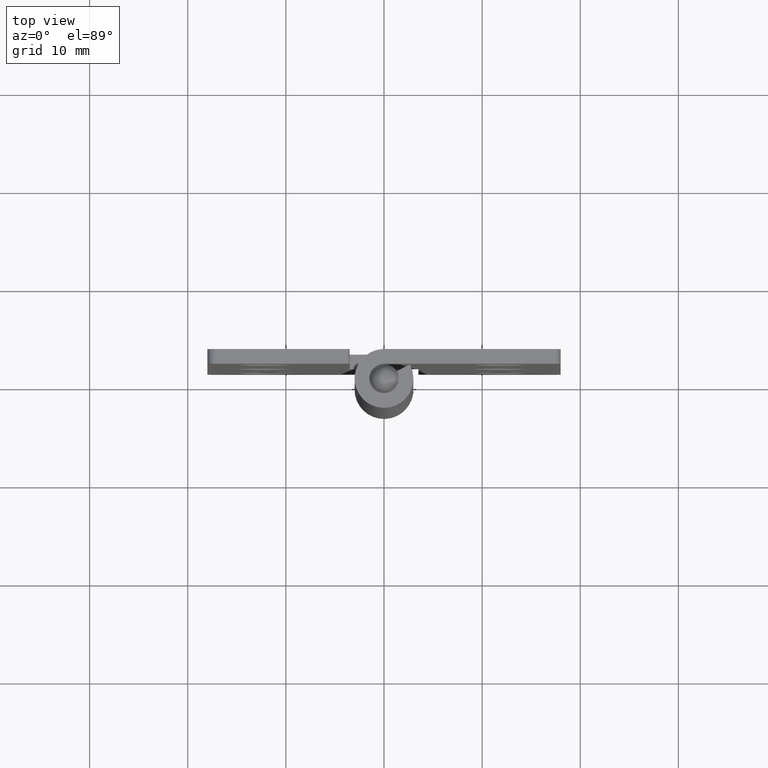
[diagram: clean part render]
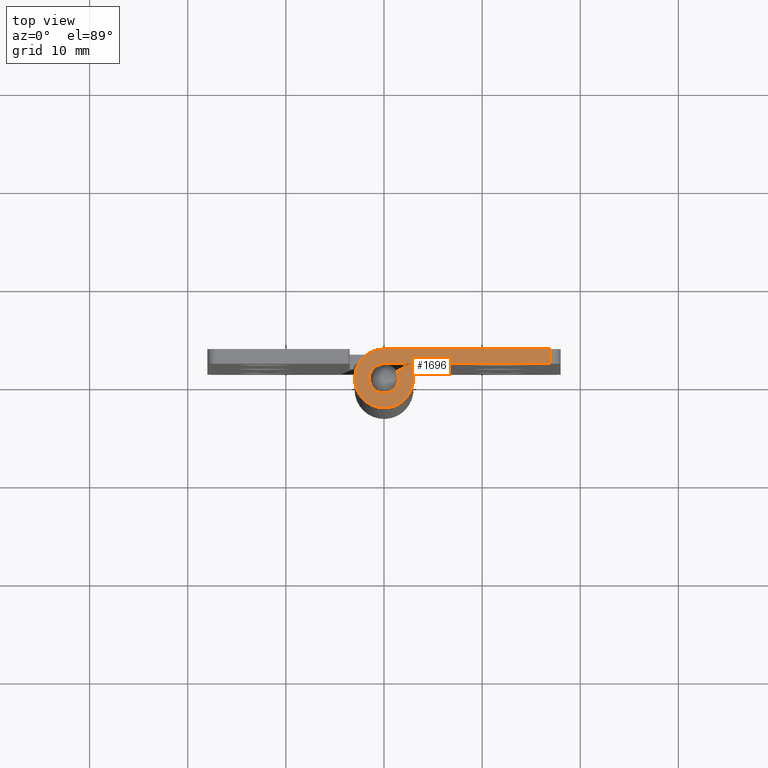
[diagram: same view with one face highlighted and labeled with its STEP entity id]
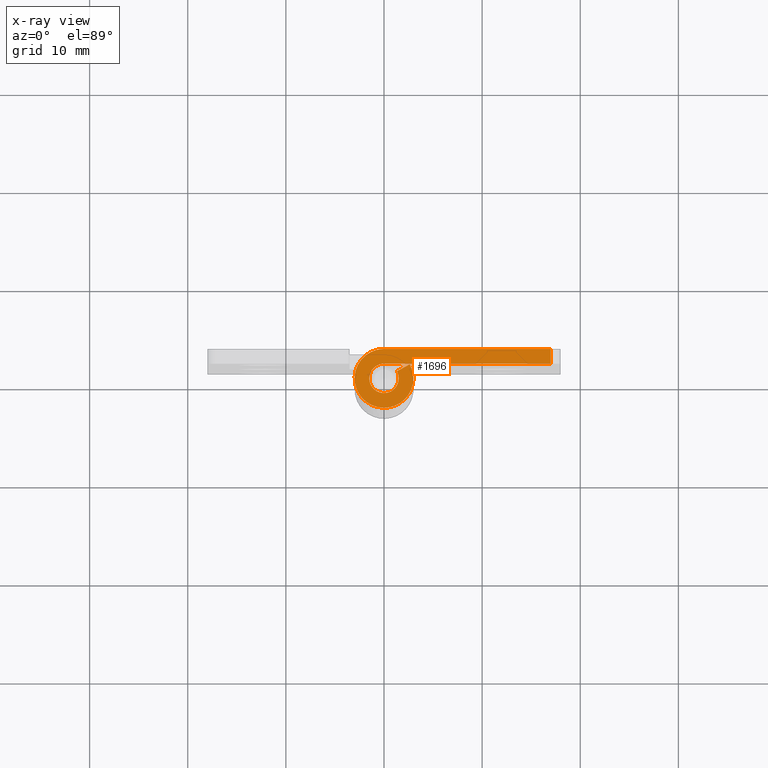
[diagram: x-ray of the same camera — body ghosted, the highlighted face saturated]
A machine part, top view. The second image highlights one B-rep face of the part: STEP entity #1696.
The next image is the same camera in x-ray: the body ghosted, the highlighted face saturated — about 0% of this face is hidden behind the body in this view.
In plain terms, the highlighted face is a freeform B-spline surface patch.
Its self-contained STEP definition (entity closure, byte-faithful):
#1423=CARTESIAN_POINT('',(17.0,1.500000000000055,65.0));
#1424=VERTEX_POINT('',#1423);
#1445=CARTESIAN_POINT('',(17.0,3.0,65.0));
#1446=VERTEX_POINT('',#1445);
#1460=CARTESIAN_POINT('',(17.0,3.0,65.0));
#1461=CARTESIAN_POINT('',(17.0,1.500000000000055,65.0));
#1462=QUASI_UNIFORM_CURVE('',1,(#1460,#1461),.UNSPECIFIED.,.F.,.U.);
#1463=EDGE_CURVE('',#1446,#1424,#1462,.T.);
#1627=CARTESIAN_POINT('',(-3.998948039192359,-3.299492247400538,65.0));
#1628=CARTESIAN_POINT('',(17.998998027553260,-3.299492247400538,65.0));
#1629=CARTESIAN_POINT('',(-3.998948039192359,3.299690266293085,65.0));
#1630=CARTESIAN_POINT('',(17.998998027553260,3.299690266293085,65.0));
#1631=B_SPLINE_SURFACE_WITH_KNOTS('',1,1,((#1627,#1629),(#1628,#1630)),.UNSPECIFIED.,.F.,.F.,.U.,(2,2),(2,2),(0.0,21.997946066745619),(0.0,6.599182513693624),.UNSPECIFIED.);
#1632=CARTESIAN_POINT('',(0.0,1.500000000000000,65.0));
#1633=VERTEX_POINT('',#1632);
#1634=CARTESIAN_POINT('',(0.0,1.500000000000000,65.0));
#1635=CARTESIAN_POINT('',(17.0,1.500000000000055,65.0));
#1636=QUASI_UNIFORM_CURVE('',1,(#1634,#1635),.UNSPECIFIED.,.F.,.U.);
#1637=EDGE_CURVE('',#1633,#1424,#1636,.T.);
#1638=ORIENTED_EDGE('',*,*,#1637,.T.);
#1639=ORIENTED_EDGE('',*,*,#1463,.F.);
#1640=CARTESIAN_POINT('',(-0.000000157079587,3.0,65.0));
#1641=VERTEX_POINT('',#1640);
#1642=CARTESIAN_POINT('',(17.0,3.0,65.0));
#1643=CARTESIAN_POINT('',(-0.000000157079587,3.0,65.0));
#1644=QUASI_UNIFORM_CURVE('',1,(#1642,#1643),.UNSPECIFIED.,.F.,.U.);
#1645=EDGE_CURVE('',#1446,#1641,#1644,.T.);
#1646=ORIENTED_EDGE('',*,*,#1645,.T.);
#1647=CARTESIAN_POINT('',(2.626308930482595,1.450000483333500,65.0));
#1648=VERTEX_POINT('',#1647);
#1649=CARTESIAN_POINT('',(2.626308930482593,1.450000483333499,65.0));
#1650=CARTESIAN_POINT('',(3.733431724475235,-0.555272283416994,65.0));
#1651=CARTESIAN_POINT('',(2.090650916021045,-2.151552636432669,65.0));
#1652=CARTESIAN_POINT('',(0.447870107566852,-3.747832989448346,65.0));
#1653=CARTESIAN_POINT('',(-1.524794762822195,-2.583602316779811,65.0));
#1654=CARTESIAN_POINT('',(-3.497459633211241,-1.419371644111277,65.0));
#1655=CARTESIAN_POINT('',(-2.894028955440283,0.790314117976658,65.0));
#1656=CARTESIAN_POINT('',(-2.290598277669325,2.999999880064593,65.0));
#1657=CARTESIAN_POINT('',(-0.000000157079588,2.999999999999996,65.0));
#1665=(BOUNDED_CURVE()B_SPLINE_CURVE(2,(#1649,#1650,#1651,#1652,#1653,#1654,#1655,#1656,#1657),.UNSPECIFIED.,.F.,.U.)B_SPLINE_CURVE_WITH_KNOTS((3,2,2,2,3),(0.0,0.250000000000000,0.500000000000000,0.750000000000000,1.0),.UNSPECIFIED.)CURVE()GEOMETRIC_REPRESENTATION_ITEM()RATIONAL_B_SPLINE_CURVE((1.0,0.794807552126888,1.0,0.794807552126888,1.0,0.794807552126888,1.0,0.794807552126888,1.0))REPRESENTATION_ITEM(''));
#1666=EDGE_CURVE('',#1648,#1641,#1665,.T.);
#1667=ORIENTED_EDGE('',*,*,#1666,.F.);
#1668=CARTESIAN_POINT('',(1.313154465241296,0.725000241666749,65.0));
#1669=VERTEX_POINT('',#1668);
#1670=CARTESIAN_POINT('',(2.626308930482595,1.450000483333500,65.0));
#1671=CARTESIAN_POINT('',(1.313154465241296,0.725000241666749,65.0));
#1672=QUASI_UNIFORM_CURVE('',1,(#1670,#1671),.UNSPECIFIED.,.F.,.U.);
#1673=EDGE_CURVE('',#1648,#1669,#1672,.T.);
#1674=ORIENTED_EDGE('',*,*,#1673,.T.);
#1675=CARTESIAN_POINT('',(1.313154465241296,0.725000241666749,65.0));
#1676=CARTESIAN_POINT('',(1.866715869749048,-0.277636155313554,65.0));
#1677=CARTESIAN_POINT('',(1.045325443928647,-1.075776331899609,65.0));
#1678=CARTESIAN_POINT('',(0.223935018108245,-1.873916508485665,65.0));
#1679=CARTESIAN_POINT('',(-0.762397415230363,-1.291801138430394,65.0));
#1680=CARTESIAN_POINT('',(-1.748729848568968,-0.709685768375125,65.0));
#1681=CARTESIAN_POINT('',(-1.447014462202364,0.395157115812437,65.0));
#1682=CARTESIAN_POINT('',(-1.145299075835759,1.500000000000000,65.0));
#1683=CARTESIAN_POINT('',(0.0,1.500000000000000,65.0));
#1691=(BOUNDED_CURVE()B_SPLINE_CURVE(2,(#1675,#1676,#1677,#1678,#1679,#1680,#1681,#1682,#1683),.UNSPECIFIED.,.F.,.U.)B_SPLINE_CURVE_WITH_KNOTS((3,2,2,2,3),(0.0,0.250000000000000,0.500000000000000,0.750000000000000,1.0),.UNSPECIFIED.)CURVE()GEOMETRIC_REPRESENTATION_ITEM()RATIONAL_B_SPLINE_CURVE((1.0,0.794807548154990,1.0,0.794807548154990,1.0,0.794807548154990,1.0,0.794807548154990,1.0))REPRESENTATION_ITEM(''));
#1692=EDGE_CURVE('',#1669,#1633,#1691,.T.);
#1693=ORIENTED_EDGE('',*,*,#1692,.T.);
#1694=EDGE_LOOP('',(#1638,#1639,#1646,#1667,#1674,#1693));
#1695=FACE_OUTER_BOUND('',#1694,.T.);
#1696=ADVANCED_FACE('',(#1695),#1631,.T.);